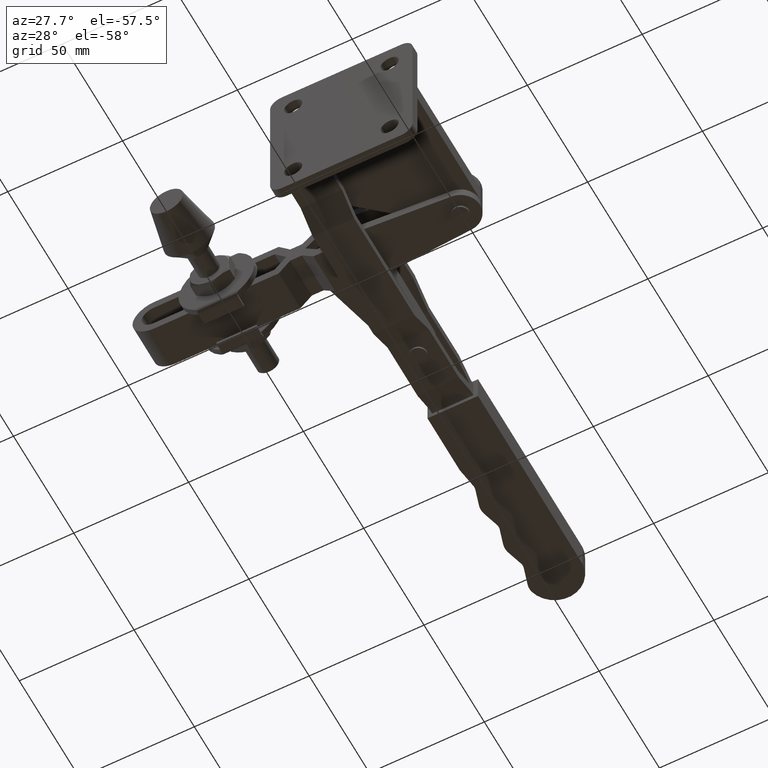
[diagram: clean part render]
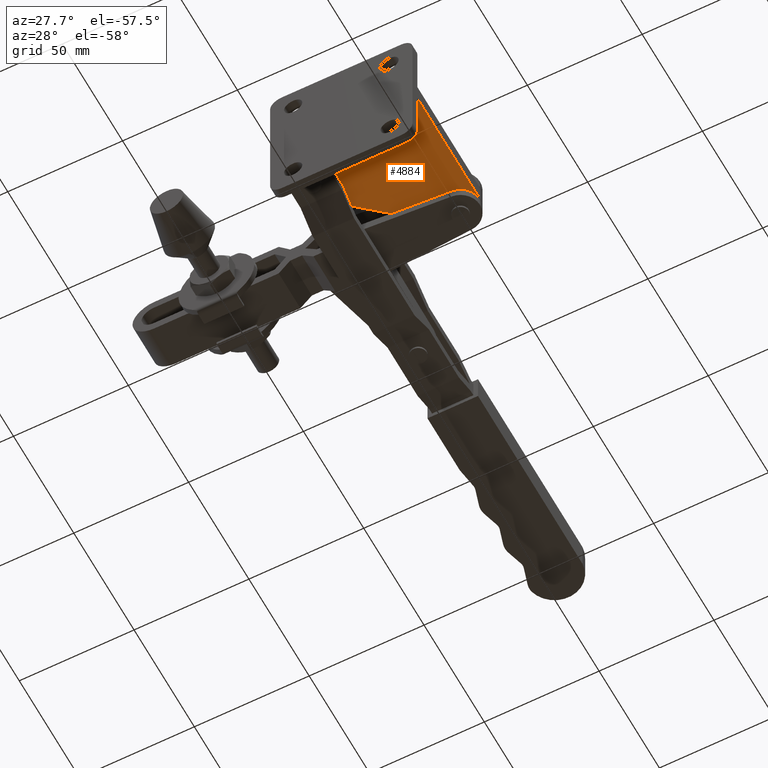
[diagram: same view with one face highlighted and labeled with its STEP entity id]
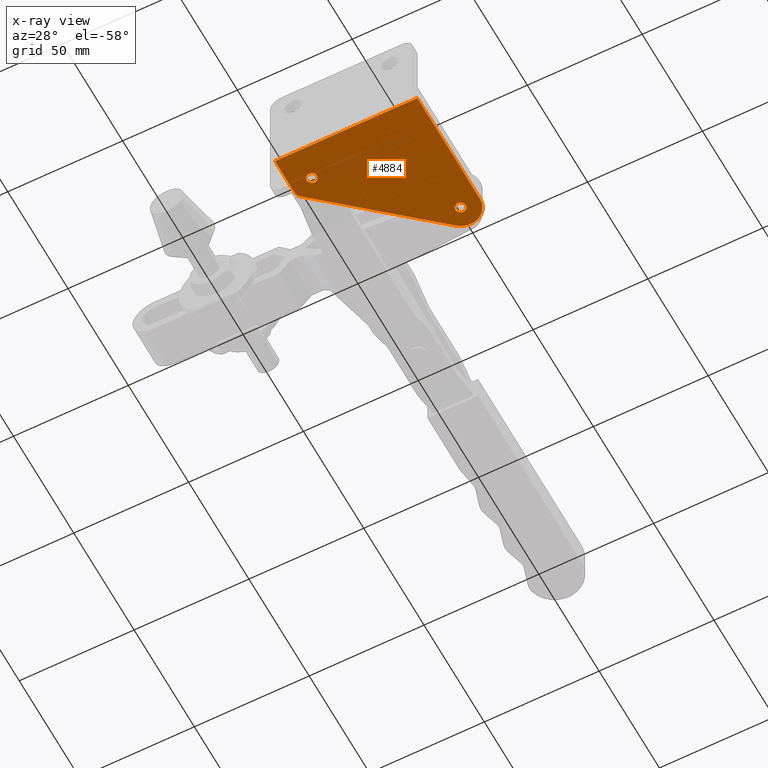
[diagram: x-ray of the same camera — body ghosted, the highlighted face saturated]
A machine part, auxiliary view. The second image highlights one B-rep face of the part: STEP entity #4884.
The next image is the same camera in x-ray: the body ghosted, the highlighted face saturated — about 8% of this face is hidden behind the body in this view.
In plain terms, the highlighted planar face has unit normal (0, 0, -1).
Its self-contained STEP definition (entity closure, byte-faithful):
#132 = LINE ( 'NONE', #3482, #8226 ) ;
#271 = DIRECTION ( 'NONE',  ( 1.000000000000000000, 0.0000000000000000000, 0.0000000000000000000 ) ) ;
#401 = AXIS2_PLACEMENT_3D ( 'NONE', #9683, #4949, #271 ) ;
#508 = VECTOR ( 'NONE', #7028, 1000.000000000000000 ) ;
#671 = CARTESIAN_POINT ( 'NONE',  ( -59.00000000000000700, 20.45108676215577100, -4.000000000000000000 ) ) ;
#734 = VERTEX_POINT ( 'NONE', #8481 ) ;
#750 = CARTESIAN_POINT ( 'NONE',  ( -55.24999999999999300, 17.50000000000000000, -4.000000000000000000 ) ) ;
#805 = AXIS2_PLACEMENT_3D ( 'NONE', #4013, #9545, #4815 ) ;
#818 = VERTEX_POINT ( 'NONE', #6189 ) ;
#1125 = CARTESIAN_POINT ( 'NONE',  ( -13.99235164593543100, 62.48722385904713400, -4.000000000000000000 ) ) ;
#1132 = EDGE_CURVE ( 'NONE', #734, #10039, #1250, .T. ) ;
#1173 = CARTESIAN_POINT ( 'NONE',  ( -8.499999999999996400, 56.00000000000000700, -4.000000000000000000 ) ) ;
#1201 = FACE_BOUND ( 'NONE', #5359, .T. ) ;
#1250 = CIRCLE ( 'NONE', #3074, 2.250000000000008900 ) ;
#1365 = EDGE_CURVE ( 'NONE', #3472, #8365, #5280, .T. ) ;
#1461 = DIRECTION ( 'NONE',  ( 1.000000000000000000, 0.0000000000000000000, 0.0000000000000000000 ) ) ;
#1521 = CARTESIAN_POINT ( 'NONE',  ( -13.99235164593543100, 62.48722385904713400, -4.000000000000000000 ) ) ;
#1649 = CARTESIAN_POINT ( 'NONE',  ( -3.717264591378874700E-016, 4.000000000000003600, -4.000000000000000000 ) ) ;
#1819 = PLANE ( 'NONE',  #401 ) ;
#1874 = CIRCLE ( 'NONE', #7035, 2.250000000000008900 ) ;
#1931 = ORIENTED_EDGE ( 'NONE', *, *, #4652, .F. ) ;
#1932 = CIRCLE ( 'NONE', #6244, 8.499999999999992900 ) ;
#1958 = DIRECTION ( 'NONE',  ( 1.000000000000000000, 0.0000000000000000000, 0.0000000000000000000 ) ) ;
#1998 = AXIS2_PLACEMENT_3D ( 'NONE', #671, #6150, #1461 ) ;
#2263 = DIRECTION ( 'NONE',  ( -0.0000000000000000000, -0.0000000000000000000, 1.000000000000000000 ) ) ;
#2630 = EDGE_LOOP ( 'NONE', ( #5105, #5427 ) ) ;
#2633 = ORIENTED_EDGE ( 'NONE', *, *, #1365, .F. ) ;
#2660 = CARTESIAN_POINT ( 'NONE',  ( -62.00000000000000000, 20.45108676215577100, -4.000000000000000000 ) ) ;
#3074 = AXIS2_PLACEMENT_3D ( 'NONE', #5730, #8346, #3332 ) ;
#3116 = EDGE_CURVE ( 'NONE', #10039, #734, #7634, .T. ) ;
#3262 = FACE_OUTER_BOUND ( 'NONE', #5861, .T. ) ;
#3332 = DIRECTION ( 'NONE',  ( -1.000000000000000000, 0.0000000000000000000, 0.0000000000000000000 ) ) ;
#3472 = VERTEX_POINT ( 'NONE', #1649 ) ;
#3482 = CARTESIAN_POINT ( 'NONE',  ( -62.00000000000000000, 20.45108676215577100, -4.000000000000000000 ) ) ;
#3518 = DIRECTION ( 'NONE',  ( 0.0000000000000000000, -1.000000000000000000, 0.0000000000000000000 ) ) ;
#3661 = VERTEX_POINT ( 'NONE', #2660 ) ;
#3691 = VERTEX_POINT ( 'NONE', #1125 ) ;
#4013 = CARTESIAN_POINT ( 'NONE',  ( -8.499999999999996400, 56.00000000000000700, -4.000000000000000000 ) ) ;
#4143 = ORIENTED_EDGE ( 'NONE', *, *, #7617, .F. ) ;
#4325 = ORIENTED_EDGE ( 'NONE', *, *, #7176, .F. ) ;
#4335 = EDGE_CURVE ( 'NONE', #8365, #3691, #1932, .T. ) ;
#4556 = DIRECTION ( 'NONE',  ( -0.0000000000000000000, -0.0000000000000000000, 1.000000000000000000 ) ) ;
#4652 = EDGE_CURVE ( 'NONE', #3691, #8499, #9570, .T. ) ;
#4815 = DIRECTION ( 'NONE',  ( -1.000000000000000000, 0.0000000000000000000, 0.0000000000000000000 ) ) ;
#4884 = ADVANCED_FACE ( 'NONE', ( #3262, #1201, #7457 ), #1819, .T. ) ;
#4949 = DIRECTION ( 'NONE',  ( 0.0000000000000000000, 0.0000000000000000000, -1.000000000000000000 ) ) ;
#5105 = ORIENTED_EDGE ( 'NONE', *, *, #8828, .T. ) ;
#5280 = LINE ( 'NONE', #5392, #9234 ) ;
#5359 = EDGE_LOOP ( 'NONE', ( #9610, #5533 ) ) ;
#5392 = CARTESIAN_POINT ( 'NONE',  ( -5.204170427930421300E-015, 56.00000000000000700, -4.000000000000000000 ) ) ;
#5427 = ORIENTED_EDGE ( 'NONE', *, *, #9564, .T. ) ;
#5533 = ORIENTED_EDGE ( 'NONE', *, *, #3116, .T. ) ;
#5730 = CARTESIAN_POINT ( 'NONE',  ( -52.99999999999998600, 17.50000000000000000, -4.000000000000000000 ) ) ;
#5735 = CARTESIAN_POINT ( 'NONE',  ( -6.249999999999987600, 56.00000000000000700, -4.000000000000000000 ) ) ;
#5861 = EDGE_LOOP ( 'NONE', ( #8221, #2633, #8936, #4143, #4325, #1931 ) ) ;
#5931 = DIRECTION ( 'NONE',  ( -9.293161478447179300E-017, 1.000000000000000000, 0.0000000000000000000 ) ) ;
#6150 = DIRECTION ( 'NONE',  ( -0.0000000000000000000, -0.0000000000000000000, 1.000000000000000000 ) ) ;
#6158 = CARTESIAN_POINT ( 'NONE',  ( -60.93847705150662400, 22.74069518299592800, -4.000000000000000000 ) ) ;
#6189 = CARTESIAN_POINT ( 'NONE',  ( -10.75000000000000500, 56.00000000000000700, -4.000000000000000000 ) ) ;
#6199 = DIRECTION ( 'NONE',  ( -0.7632028069467210500, -0.6461590171688745800, -0.0000000000000000000 ) ) ;
#6226 = CARTESIAN_POINT ( 'NONE',  ( -59.00000000000000700, 4.000000000000000000, -4.000000000000000000 ) ) ;
#6244 = AXIS2_PLACEMENT_3D ( 'NONE', #1173, #6673, #1958 ) ;
#6354 = CARTESIAN_POINT ( 'NONE',  ( -62.00000000000000000, 4.000000000000000000, -4.000000000000000000 ) ) ;
#6673 = DIRECTION ( 'NONE',  ( -0.0000000000000000000, -0.0000000000000000000, 1.000000000000000000 ) ) ;
#6828 = CARTESIAN_POINT ( 'NONE',  ( -3.469446951953614200E-015, 56.00000000000000700, -4.000000000000000000 ) ) ;
#6982 = CARTESIAN_POINT ( 'NONE',  ( -52.99999999999998600, 17.50000000000000000, -4.000000000000000000 ) ) ;
#7028 = DIRECTION ( 'NONE',  ( 1.000000000000000000, 0.0000000000000000000, 0.0000000000000000000 ) ) ;
#7035 = AXIS2_PLACEMENT_3D ( 'NONE', #9292, #4556, #10087 ) ;
#7176 = EDGE_CURVE ( 'NONE', #8499, #3661, #9105, .T. ) ;
#7225 = VECTOR ( 'NONE', #6199, 1000.000000000000100 ) ;
#7226 = AXIS2_PLACEMENT_3D ( 'NONE', #6982, #2263, #7787 ) ;
#7343 = VERTEX_POINT ( 'NONE', #6354 ) ;
#7457 = FACE_BOUND ( 'NONE', #2630, .T. ) ;
#7617 = EDGE_CURVE ( 'NONE', #3661, #7343, #132, .T. ) ;
#7634 = CIRCLE ( 'NONE', #7226, 2.250000000000008900 ) ;
#7787 = DIRECTION ( 'NONE',  ( -1.000000000000000000, 0.0000000000000000000, 0.0000000000000000000 ) ) ;
#8221 = ORIENTED_EDGE ( 'NONE', *, *, #4335, .F. ) ;
#8226 = VECTOR ( 'NONE', #3518, 1000.000000000000000 ) ;
#8346 = DIRECTION ( 'NONE',  ( -0.0000000000000000000, -0.0000000000000000000, 1.000000000000000000 ) ) ;
#8365 = VERTEX_POINT ( 'NONE', #6828 ) ;
#8481 = CARTESIAN_POINT ( 'NONE',  ( -50.74999999999997900, 17.50000000000000000, -4.000000000000000000 ) ) ;
#8499 = VERTEX_POINT ( 'NONE', #6158 ) ;
#8519 = EDGE_CURVE ( 'NONE', #7343, #3472, #8615, .T. ) ;
#8615 = LINE ( 'NONE', #6226, #508 ) ;
#8828 = EDGE_CURVE ( 'NONE', #9139, #818, #1874, .T. ) ;
#8936 = ORIENTED_EDGE ( 'NONE', *, *, #8519, .F. ) ;
#9105 = CIRCLE ( 'NONE', #1998, 2.999999999999995600 ) ;
#9139 = VERTEX_POINT ( 'NONE', #5735 ) ;
#9234 = VECTOR ( 'NONE', #5931, 1000.000000000000000 ) ;
#9292 = CARTESIAN_POINT ( 'NONE',  ( -8.499999999999996400, 56.00000000000000700, -4.000000000000000000 ) ) ;
#9545 = DIRECTION ( 'NONE',  ( -0.0000000000000000000, -0.0000000000000000000, 1.000000000000000000 ) ) ;
#9564 = EDGE_CURVE ( 'NONE', #818, #9139, #9711, .T. ) ;
#9570 = LINE ( 'NONE', #1521, #7225 ) ;
#9610 = ORIENTED_EDGE ( 'NONE', *, *, #1132, .T. ) ;
#9683 = CARTESIAN_POINT ( 'NONE',  ( -59.00000000000000700, 20.45108676215577100, -4.000000000000000000 ) ) ;
#9711 = CIRCLE ( 'NONE', #805, 2.250000000000008900 ) ;
#10039 = VERTEX_POINT ( 'NONE', #750 ) ;
#10087 = DIRECTION ( 'NONE',  ( -1.000000000000000000, 0.0000000000000000000, 0.0000000000000000000 ) ) ;